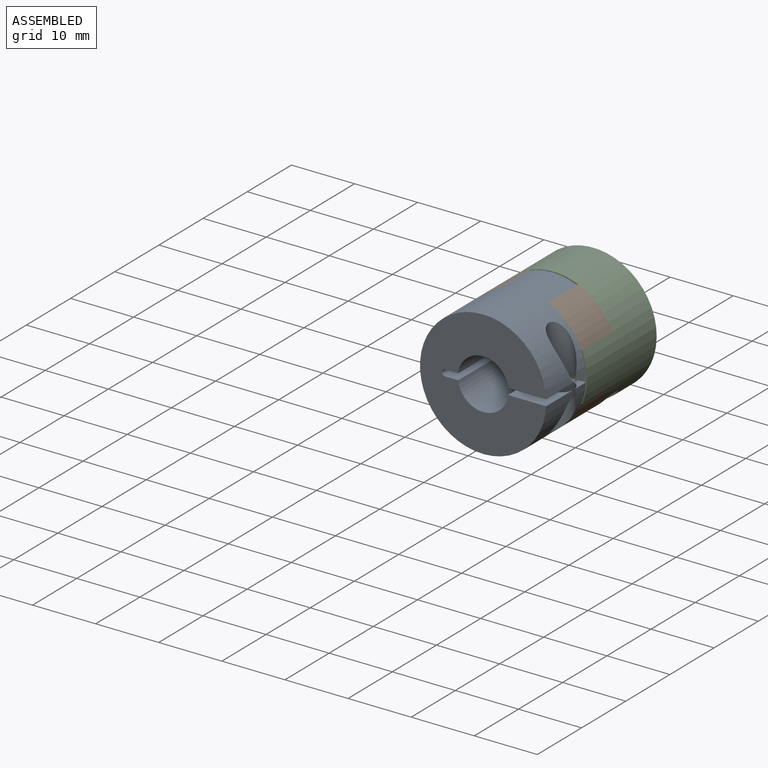
[diagram: assembled view]
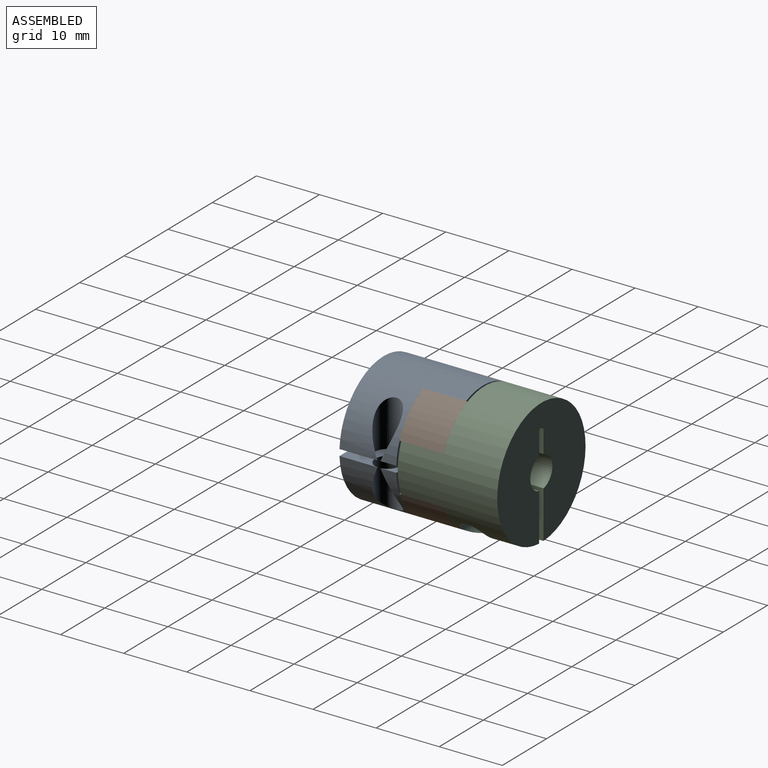
[diagram: assembled view, second angle]
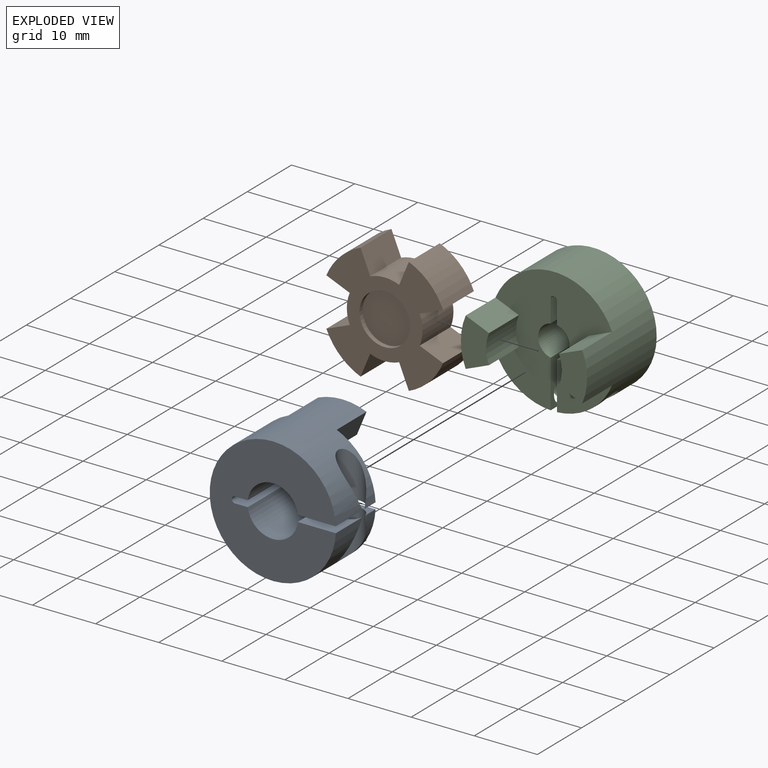
[diagram: exploded view]
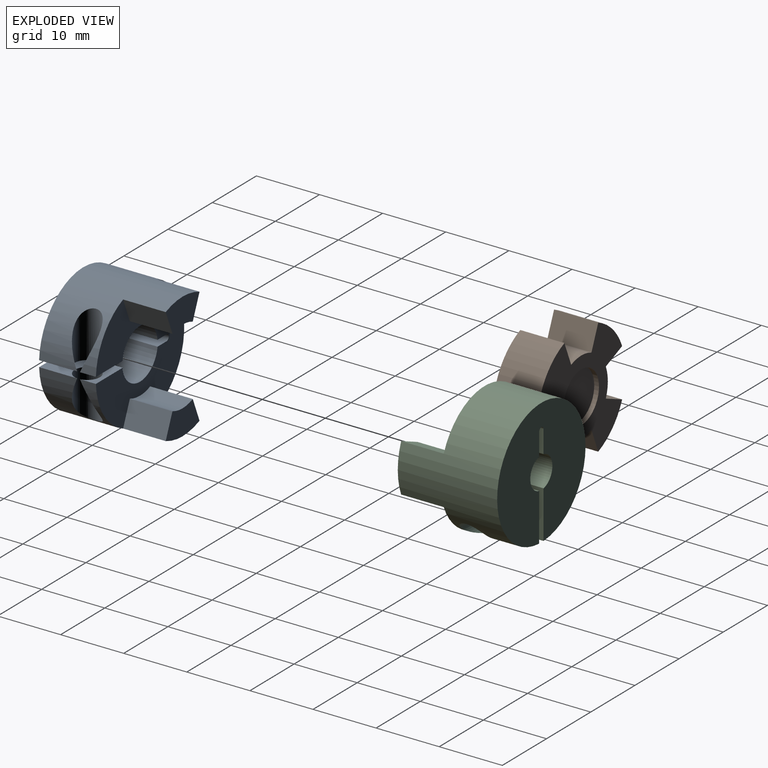
[diagram: exploded view, second angle]
ASSEMBLY  parts=3 mates=2
PART A: 20 faces, bbox 20x15.8x20 mm
  f0: cylinder r=10mm len=20mm, axis (0,1,0), area 613.2mm2, adj f1,f2,f8,f9,f10,f11,f13,f14
  f1: plane 9x6.02mm, normal (-1,0,0), area 41.6mm2, adj f0,f3,f10,f17,f19
  f2: plane 9x6.02mm, normal (1,0,0), area 41.6mm2, adj f0,f4,f10,f17,f18
  f3: cylinder r=4mm len=9mm, axis (0,1,0), area 104.1mm2, adj f1,f7,f10,f17
  f4: cylinder r=4mm len=9mm, axis (0,1,0), area 104.1mm2, adj f2,f5,f10,f17
  f5: plane 9x2.03mm, normal (1,0,0), area 18.3mm2, adj f4,f6,f10,f17
  f6: cylinder r=0.5mm len=9mm, axis (0,1,0), area 14.1mm2, adj f5,f7,f10,f17
  f7: plane 9x2.03mm, normal (-1,0,0), area 18.3mm2, adj f3,f6,f10,f17
  f8: plane 7.65x4.46mm, normal (0,-1,0), area 25.1mm2, adj f0,f11,f12,f13
  f9: plane 7.65x4.46mm, normal (0,-1,0), area 25.1mm2, adj f0,f14,f15,f16
  f10: plane 20x19.99mm, normal (0,1,0), area 255.5mm2, adj f0,f1,f2,f3,f4,f5,f6,f7
  f11: plane 6.75x3.7mm, normal (0.38,0,0.92), area 27mm2, adj f0,f8,f12,f17
  f12: cylinder r=6mm len=6.75mm, axis (0,-1,0), area 31.8mm2, adj f8,f11,f13,f17
  f13: plane 6.75x3.7mm, normal (0.38,0,-0.92), area 27mm2, adj f0,f8,f12,f17
  f14: plane 6.75x3.7mm, normal (-0.38,0,-0.92), area 27mm2, adj f0,f9,f15,f17
  f15: cylinder r=6mm len=6.75mm, axis (0,-1,0), area 31.8mm2, adj f9,f14,f16,f17
  f16: plane 6.75x3.7mm, normal (-0.38,0,0.92), area 27mm2, adj f0,f9,f15,f17
  f17: plane 19.99x18.48mm, normal (0,-1,0), area 205.2mm2, adj f0,f1,f2,f3,f4,f5,f6,f7
  f18: cylinder r=2mm len=7.5mm, axis (1,0,0), area 60.4mm2, adj f0,f2
  f19: cylinder r=2mm len=7.5mm, axis (1,0,0), area 60.4mm2, adj f0,f1
PART B: 22 faces, bbox 18.5x7x18.5 mm
  f0: cylinder r=4mm len=8mm, axis (0,1,0), area 18.8mm2, adj f19,f20
  f1: cylinder r=10mm len=7mm, axis (0,1,0), area 55mm2, adj f2,f16,f18,f19
  f2: plane 7x3.7mm, normal (-0.38,0,-0.92), area 28mm2, adj f1,f3,f18,f19
  f3: cylinder r=6mm len=7mm, axis (0,1,0), area 33mm2, adj f2,f4,f18,f19
  f4: plane 7x3.7mm, normal (-0.38,0,0.92), area 28mm2, adj f3,f5,f18,f19
  f5: cylinder r=10mm len=7mm, axis (0,1,0), area 55mm2, adj f4,f6,f18,f19
  f6: plane 7x3.7mm, normal (0.92,0,-0.38), area 28mm2, adj f5,f7,f18,f19
  f7: cylinder r=6mm len=7mm, axis (0,1,0), area 33mm2, adj f6,f8,f18,f19
  f8: plane 7x3.7mm, normal (-0.92,0,-0.38), area 28mm2, adj f7,f9,f18,f19
  f9: cylinder r=10mm len=7mm, axis (0,1,0), area 55mm2, adj f8,f10,f18,f19
  f10: plane 7x3.7mm, normal (0.38,0,0.92), area 28mm2, adj f9,f11,f18,f19
  f11: cylinder r=6mm len=7mm, axis (0,1,0), area 33mm2, adj f10,f12,f18,f19
  f12: plane 7x3.7mm, normal (0.38,0,-0.92), area 28mm2, adj f11,f13,f18,f19
  f13: cylinder r=10mm len=7mm, axis (0,1,0), area 55mm2, adj f12,f14,f18,f19
  f14: plane 7x3.7mm, normal (-0.92,0,0.38), area 28mm2, adj f13,f15,f18,f19
  f15: cylinder r=6mm len=7mm, axis (0,1,0), area 33mm2, adj f14,f16,f18,f19
  f16: plane 7x3.7mm, normal (0.92,0,0.38), area 28mm2, adj f1,f15,f18,f19
  f17: cylinder r=4mm len=8mm, axis (0,1,0), area 18.8mm2, adj f18,f21
  f18: plane 18.48x18.48mm, normal (0,-1,0), area 163.4mm2, adj f1,f2,f3,f4,f5,f6,f7,f8
  f19: plane 18.48x18.48mm, normal (0,1,0), area 163.4mm2, adj f0,f1,f2,f3,f4,f5,f6,f7
  f20: plane 8x8mm, normal (0,1,0), area 50.3mm2, adj f0
  f21: plane 8x8mm, normal (0,-1,0), area 50.3mm2, adj f17
PART C: 20 faces, bbox 20x15.8x20 mm
  f0: cylinder r=10mm len=20mm, axis (0,1,0), area 613.2mm2, adj f1,f2,f8,f9,f10,f11,f13,f14
  f1: plane 9x7.54mm, normal (-1,0,0), area 55.3mm2, adj f0,f3,f10,f17,f19
  f2: plane 9x7.54mm, normal (1,0,0), area 55.3mm2, adj f0,f4,f10,f17,f18
  f3: cylinder r=2.5mm len=9mm, axis (0,1,0), area 61.6mm2, adj f1,f7,f10,f17
  f4: cylinder r=2.5mm len=9mm, axis (0,1,0), area 61.6mm2, adj f2,f5,f10,f17
  f5: plane 9x3.55mm, normal (1,0,0), area 32mm2, adj f4,f6,f10,f17
  f6: cylinder r=0.5mm len=9mm, axis (0,1,0), area 14.1mm2, adj f5,f7,f10,f17
  f7: plane 9x3.55mm, normal (-1,0,0), area 32mm2, adj f3,f6,f10,f17
  f8: plane 7.65x4.46mm, normal (0,-1,0), area 25.1mm2, adj f0,f11,f12,f13
  f9: plane 7.65x4.46mm, normal (0,-1,0), area 25.1mm2, adj f0,f14,f15,f16
  f10: plane 20x19.99mm, normal (0,1,0), area 283.1mm2, adj f0,f1,f2,f3,f4,f5,f6,f7
  f11: plane 6.75x3.7mm, normal (0.38,0,0.92), area 27mm2, adj f0,f8,f12,f17
  f12: cylinder r=6mm len=6.75mm, axis (0,-1,0), area 31.8mm2, adj f8,f11,f13,f17
  f13: plane 6.75x3.7mm, normal (0.38,0,-0.92), area 27mm2, adj f0,f8,f12,f17
  f14: plane 6.75x3.7mm, normal (-0.38,0,-0.92), area 27mm2, adj f0,f9,f15,f17
  f15: cylinder r=6mm len=6.75mm, axis (0,-1,0), area 31.8mm2, adj f9,f14,f16,f17
  f16: plane 6.75x3.7mm, normal (-0.38,0,0.92), area 27mm2, adj f0,f9,f15,f17
  f17: plane 19.99x18.48mm, normal (0,-1,0), area 232.8mm2, adj f0,f1,f2,f3,f4,f5,f6,f7
  f18: cylinder r=2mm len=7.5mm, axis (1,0,0), area 60.4mm2, adj f0,f2
  f19: cylinder r=2mm len=7.5mm, axis (1,0,0), area 60.4mm2, adj f0,f1
PLACE A rot(axis=(0.71,0,-0.71),180deg) t=(51.99,-9.43,-17.92)mm
PLACE B rot(axis=(0,1,0),90deg) t=(51.99,3.07,-17.92)mm
PLACE C t=(51.99,15.57,-17.92)mm
MATE fastened B.f0 <-> C.f4  axis (0,1,0) through (51.99,6.57,-17.92)mm
MATE fastened A.f3 <-> B.f0  axis (0,-1,0) through (51.99,-0.43,-17.92)mm
